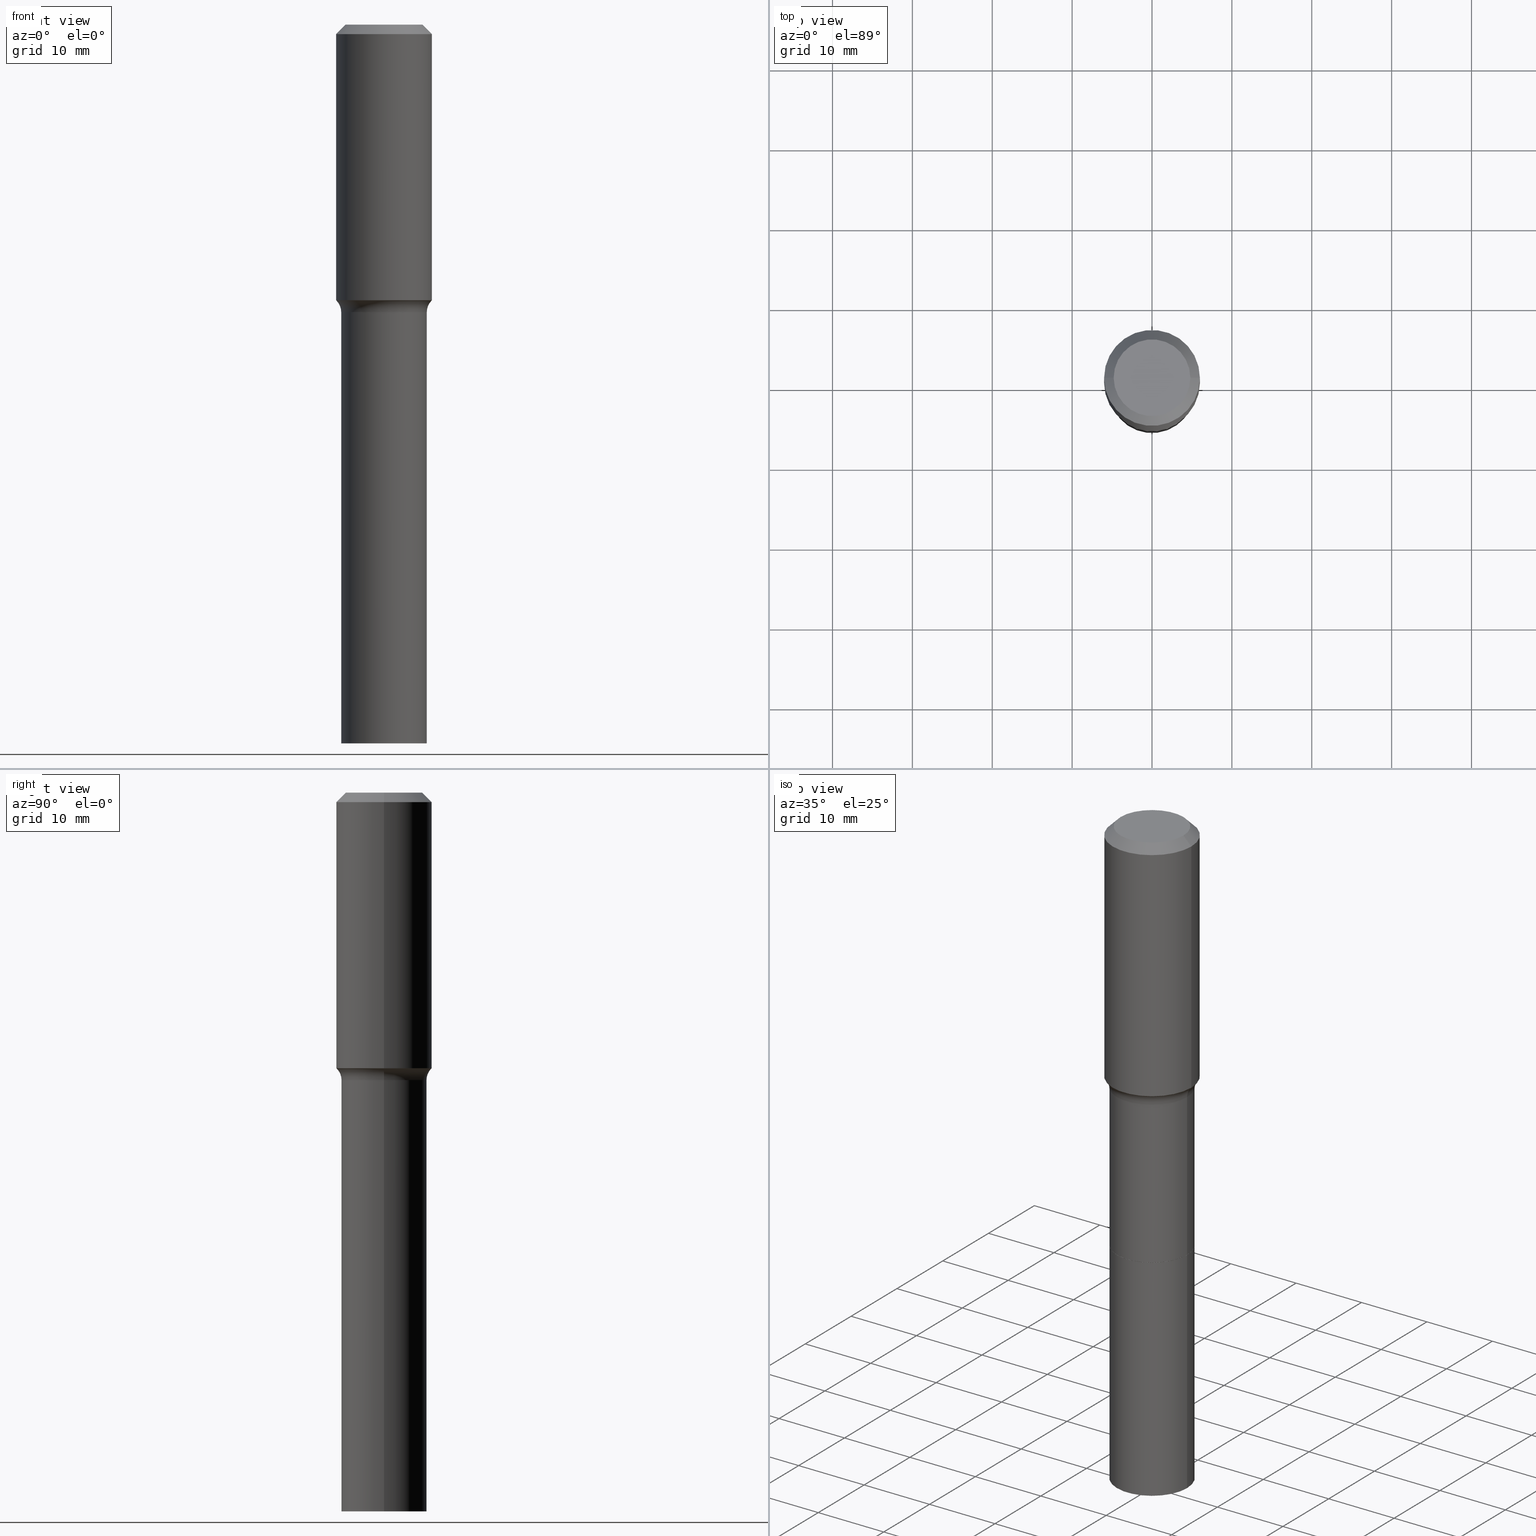
[diagram: canonical four-view strip — front | top / right | iso, engineering-drawing reading convention]
A machine part, canonical four-view strip (front | top / right | iso — engineering-drawing reading convention). The complete STEP part file that produces these views, byte-faithful:
ISO-10303-21;
HEADER;
FILE_DESCRIPTION (( 'STEP AP203' ),
    '1' );
FILE_NAME ('58840.STEP',
    '2025-04-01T15:25:37',
    ( '' ),
    ( '' ),
    'SwSTEP 2.0',
    'SolidWorks 2024',
    '' );
FILE_SCHEMA (( 'CONFIG_CONTROL_DESIGN' ));
ENDSEC;

DATA;
#1 = LOCAL_TIME ( 11, 25, 37.00000000000000000, #167 ) ;
#2 = DIRECTION ( 'NONE',  ( -2.445468806185136597E-29, 3.491481338843145583E-15, 1.000000000000000000 ) ) ;
#3 = ORIENTED_EDGE ( 'NONE', *, *, #275, .T. ) ;
#4 = CARTESIAN_POINT ( 'NONE',  ( 3.465962939006193759E-29, -4.948476501542390442E-15, -1.417300000000000004 ) ) ;
#5 = ORIENTED_EDGE ( 'NONE', *, *, #180, .F. ) ;
#6 = EDGE_CURVE ( 'NONE', #503, #441, #263, .T. ) ;
#7 = CIRCLE ( 'NONE', #165, 0.08000000000000009881 ) ;
#8 = ORIENTED_EDGE ( 'NONE', *, *, #191, .F. ) ;
#9 = DIRECTION ( 'NONE',  ( 1.000000000000000000, -6.982962677686261977E-15, 0.000000000000000000 ) ) ;
#10 = APPROVAL_STATUS ( 'not_yet_approved' ) ;
#11 = EDGE_LOOP ( 'NONE', ( #444, #131, #289, #376 ) ) ;
#12 = CIRCLE ( 'NONE', #435, 0.2109500000000002207 ) ;
#13 = CYLINDRICAL_SURFACE ( 'NONE', #272, 0.2109499999999999709 ) ;
#14 = CIRCLE ( 'NONE', #315, 0.2109499999999999154 ) ;
#15 = VERTEX_POINT ( 'NONE', #225 ) ;
#16 = DIRECTION ( 'NONE',  ( -2.445468806185136597E-29, 3.491481338843145583E-15, 1.000000000000000000 ) ) ;
#17 = CARTESIAN_POINT ( 'NONE',  ( 3.322682559777889075E-29, -4.743910093239522183E-15, -1.358709852022681019 ) ) ;
#18 = APPROVAL ( #51, 'UNSPECIFIED' ) ;
#19 = DIRECTION ( 'NONE',  ( -6.982962677686266711E-15, -1.000000000000000000, 3.491481338843145583E-15 ) ) ;
#20 = DIRECTION ( 'NONE',  ( -1.000000000000000000, 6.982962677686265922E-15, -4.876176775795935793E-29 ) ) ;
#21 = FACE_OUTER_BOUND ( 'NONE', #148, .T. ) ;
#22 = ORIENTED_EDGE ( 'NONE', *, *, #287, .T. ) ;
#23 = EDGE_CURVE ( 'NONE', #499, #44, #106, .T. ) ;
#24 = DIRECTION ( 'NONE',  ( -2.445468806185136597E-29, 3.491481338843145583E-15, 1.000000000000000000 ) ) ;
#25 = CARTESIAN_POINT ( 'NONE',  ( -0.2109500000000002207, -8.658876758010429483E-15, -3.543299999999999894 ) ) ;
#26 = CARTESIAN_POINT ( 'NONE',  ( 0.2362000000000000766, -1.649375784469496722E-15, 1.151752954443000368E-29 ) ) ;
#27 = DIRECTION ( 'NONE',  ( 1.000000000000000000, -6.982962677686266711E-15, 4.876185090822587894E-29 ) ) ;
#28 = CC_DESIGN_PERSON_AND_ORGANIZATION_ASSIGNMENT ( #252, #169, ( #390 ) ) ;
#29 = CARTESIAN_POINT ( 'NONE',  ( 1.155239464041865682E-30, -1.649375784469512105E-16, -0.04724000000000028870 ) ) ;
#30 = CARTESIAN_POINT ( 'NONE',  ( 8.665029620955794069E-29, -1.237136582792291707E-14, -3.543299999999999894 ) ) ;
#31 = CARTESIAN_POINT ( 'NONE',  ( 0.2324417038704663652, -6.381113480625271103E-15, -1.362740131194999815 ) ) ;
#32 = DIRECTION ( 'NONE',  ( -2.445468806185136597E-29, 3.491481338843145583E-15, 1.000000000000000000 ) ) ;
#33 = AXIS2_PLACEMENT_3D ( 'NONE', #420, #53, #65 ) ;
#34 = EDGE_CURVE ( 'NONE', #42, #361, #12, .T. ) ;
#35 = CIRCLE ( 'NONE', #239, 0.08000000000000009881 ) ;
#36 = EDGE_CURVE ( 'NONE', #503, #490, #80, .T. ) ;
#37 = CARTESIAN_POINT ( 'NONE',  ( 5.564175174713041439E-29, -7.944167490269808896E-15, -2.275300000000000100 ) ) ;
#38 = AXIS2_PLACEMENT_3D ( 'NONE', #63, #24, #150 ) ;
#39 = ORGANIZATION ( 'UNSPECIFIED', 'UNSPECIFIED', '' ) ;
#40 = CARTESIAN_POINT ( 'NONE',  ( 3.465962939006193759E-29, -4.948476501542390442E-15, -1.417300000000000004 ) ) ;
#41 = EDGE_CURVE ( 'NONE', #84, #15, #382, .T. ) ;
#42 = VERTEX_POINT ( 'NONE', #62 ) ;
#43 = EDGE_CURVE ( 'NONE', #499, #84, #155, .T. ) ;
#44 = VERTEX_POINT ( 'NONE', #221 ) ;
#45 = SHAPE_DEFINITION_REPRESENTATION ( #470, #231 ) ;
#46 = ORIENTED_EDGE ( 'NONE', *, *, #445, .T. ) ;
#47 = EDGE_CURVE ( 'NONE', #494, #125, #111, .T. ) ;
#48 = AXIS2_PLACEMENT_3D ( 'NONE', #4, #78, #120 ) ;
#49 = CARTESIAN_POINT ( 'NONE',  ( -0.2362000000000001598, -3.065608151374164211E-15, -1.358709852022681019 ) ) ;
#50 = ORIENTED_EDGE ( 'NONE', *, *, #460, .T. ) ;
#51 = APPROVAL_STATUS ( 'not_yet_approved' ) ;
#52 = DIRECTION ( 'NONE',  ( -1.000000000000000000, 6.982962677686266711E-15, 0.000000000000000000 ) ) ;
#53 = DIRECTION ( 'NONE',  ( -2.445468806185136597E-29, 3.491481338843145583E-15, 1.000000000000000000 ) ) ;
#54 = CARTESIAN_POINT ( 'NONE',  ( 1.155239464041865682E-30, -1.649375784469512105E-16, -0.04724000000000028870 ) ) ;
#55 =( LENGTH_UNIT ( ) NAMED_UNIT ( * ) SI_UNIT ( $, .METRE. ) );
#56 = AXIS2_PLACEMENT_3D ( 'NONE', #171, #16, #370 ) ;
#57 = PERSON_AND_ORGANIZATION ( #513, #39 ) ;
#58 = DIRECTION ( 'NONE',  ( -1.000000000000000000, 6.982962677686265922E-15, -4.876176775795935793E-29 ) ) ;
#59 = DIRECTION ( 'NONE',  ( -2.445468806185136877E-29, 3.491481338843145188E-15, 1.000000000000000000 ) ) ;
#60 = DIRECTION ( 'NONE',  ( -2.445468806185136597E-29, 3.491481338843145583E-15, 1.000000000000000000 ) ) ;
#61 = MANIFOLD_SOLID_BREP ( 'Body-Move/Copy2[2]', #281 ) ;
#62 = CARTESIAN_POINT ( 'NONE',  ( 0.2109500000000002207, -1.384442180478083622E-14, -3.543299999999999894 ) ) ;
#63 = CARTESIAN_POINT ( 'NONE',  ( 5.564175174713040318E-29, -7.944167490269808896E-15, -2.275300000000000100 ) ) ;
#64 = FACE_OUTER_BOUND ( 'NONE', #324, .T. ) ;
#65 = DIRECTION ( 'NONE',  ( 1.000000000000000000, -6.982962677686261977E-15, 0.000000000000000000 ) ) ;
#66 = VECTOR ( 'NONE', #306, 39.37007874015748143 ) ;
#67 = CARTESIAN_POINT ( 'NONE',  ( 5.564175174713041439E-29, -7.944167490269808896E-15, -2.275300000000000100 ) ) ;
#68 = DIRECTION ( 'NONE',  ( -0.7071067811864267805, 7.493145998869918709E-15, 0.7071067811866682540 ) ) ;
#69 = CARTESIAN_POINT ( 'NONE',  ( 3.322682559777889075E-29, -4.743910093239522183E-15, -1.358709852022681019 ) ) ;
#70 = ORIENTED_EDGE ( 'NONE', *, *, #233, .F. ) ;
#71 = CIRCLE ( 'NONE', #293, 0.2361999999999999933 ) ;
#72 = FACE_OUTER_BOUND ( 'NONE', #301, .T. ) ;
#73 = FACE_OUTER_BOUND ( 'NONE', #292, .T. ) ;
#74 = AXIS2_PLACEMENT_3D ( 'NONE', #430, #60, #219 ) ;
#75 = CARTESIAN_POINT ( 'NONE',  ( 1.155239464041865682E-30, -1.649375784469512105E-16, -0.04724000000000028870 ) ) ;
#76 = EDGE_CURVE ( 'NONE', #361, #269, #193, .T. ) ;
#77 = LOCAL_TIME ( 11, 25, 37.00000000000000000, #291 ) ;
#78 = DIRECTION ( 'NONE',  ( -2.445468806185136597E-29, 3.491481338843145583E-15, 1.000000000000000000 ) ) ;
#79 = ORIENTED_EDGE ( 'NONE', *, *, #433, .T. ) ;
#80 = CIRCLE ( 'NONE', #33, 0.2109499999999999986 ) ;
#81 = EDGE_LOOP ( 'NONE', ( #368, #360 ) ) ;
#82 = AXIS2_PLACEMENT_3D ( 'NONE', #333, #181, #259 ) ;
#83 = CARTESIAN_POINT ( 'NONE',  ( 5.564175174713040318E-29, -7.944167490269808896E-15, -2.275300000000000100 ) ) ;
#84 = VERTEX_POINT ( 'NONE', #347 ) ;
#85 = ADVANCED_FACE ( 'NONE', ( #304 ), #377, .T. ) ;
#86 = DATE_AND_TIME ( #496, #77 ) ;
#87 = ORIENTED_EDGE ( 'NONE', *, *, #139, .F. ) ;
#88 = EDGE_LOOP ( 'NONE', ( #265, #461, #338, #5 ) ) ;
#89 = AXIS2_PLACEMENT_3D ( 'NONE', #229, #224, #335 ) ;
#90 = VERTEX_POINT ( 'NONE', #432 ) ;
#91 = FACE_OUTER_BOUND ( 'NONE', #217, .T. ) ;
#92 = DATE_TIME_ROLE ( 'creation_date' ) ;
#93 = DIRECTION ( 'NONE',  ( -2.445468806185136877E-29, 3.491481338843145188E-15, 1.000000000000000000 ) ) ;
#94 = APPROVAL ( #446, 'UNSPECIFIED' ) ;
#95 = FACE_OUTER_BOUND ( 'NONE', #258, .T. ) ;
#96 = APPROVAL_ROLE ( '' ) ;
#97 = CYLINDRICAL_SURFACE ( 'NONE', #261, 0.2362000000000000766 ) ;
#98 = ORIENTED_EDGE ( 'NONE', *, *, #23, .F. ) ;
#99 = DIRECTION ( 'NONE',  ( 1.000000000000000000, -6.982962677686263555E-15, 0.000000000000000000 ) ) ;
#100 = CARTESIAN_POINT ( 'NONE',  ( -0.2324417038704663652, -3.106384096031399202E-15, -1.362740131194999815 ) ) ;
#101 = APPROVAL_PERSON_ORGANIZATION ( #486, #18, #206 ) ;
#102 = AXIS2_PLACEMENT_3D ( 'NONE', #67, #227, #384 ) ;
#103 = ORIENTED_EDGE ( 'NONE', *, *, #449, .F. ) ;
#104 = DIRECTION ( 'NONE',  ( 1.000000000000000000, -6.982962677686266711E-15, 0.000000000000000000 ) ) ;
#105 = ADVANCED_FACE ( 'NONE', ( #73 ), #330, .T. ) ;
#106 = LINE ( 'NONE', #416, #66 ) ;
#107 = LINE ( 'NONE', #266, #132 ) ;
#108 = DIRECTION ( 'NONE',  ( -2.445468806185136597E-29, 3.491481338843145583E-15, 1.000000000000000000 ) ) ;
#109 = DIRECTION ( 'NONE',  ( -2.445468806185136597E-29, 3.491481338843145583E-15, 1.000000000000000000 ) ) ;
#110 = ORIENTED_EDGE ( 'NONE', *, *, #41, .T. ) ;
#111 = CIRCLE ( 'NONE', #426, 0.1889600000000000168 ) ;
#112 = DIRECTION ( 'NONE',  ( -2.445468806185136597E-29, 3.491481338843145583E-15, 1.000000000000000000 ) ) ;
#113 = CONICAL_SURFACE ( 'NONE', #323, 0.2361999999999999933, 0.7853981633974452814 ) ;
#114 = ADVANCED_FACE ( 'NONE', ( #232 ), #299, .T. ) ;
#115 = PLANE ( 'NONE',  #518 ) ;
#116 = AXIS2_PLACEMENT_3D ( 'NONE', #69, #386, #303 ) ;
#117 = DIRECTION ( 'NONE',  ( 2.438088387897960049E-29, -3.491481338843145188E-15, -1.000000000000000000 ) ) ;
#118 = EDGE_CURVE ( 'NONE', #490, #168, #514, .T. ) ;
#119 = ORIENTED_EDGE ( 'NONE', *, *, #172, .F. ) ;
#120 = DIRECTION ( 'NONE',  ( 1.000000000000000000, -6.982962677686265133E-15, 0.000000000000000000 ) ) ;
#121 = VECTOR ( 'NONE', #380, 39.37007874015748143 ) ;
#122 = ORIENTED_EDGE ( 'NONE', *, *, #516, .F. ) ;
#123 = APPLICATION_CONTEXT ( 'configuration controlled 3d designs of mechanical parts and assemblies' ) ;
#124 = APPROVAL_ROLE ( '' ) ;
#125 = VERTEX_POINT ( 'NONE', #341 ) ;
#126 = MECHANICAL_CONTEXT ( 'NONE', #123, 'mechanical' ) ;
#127 = CALENDAR_DATE ( 2025, 1, 4 ) ;
#128 = VERTEX_POINT ( 'NONE', #267 ) ;
#129 = CIRCLE ( 'NONE', #474, 0.2324417038704663652 ) ;
#130 = APPROVAL_DATE_TIME ( #414, #18 ) ;
#131 = ORIENTED_EDGE ( 'NONE', *, *, #23, .T. ) ;
#132 = VECTOR ( 'NONE', #424, 39.37007874015748143 ) ;
#133 = APPROVAL_PERSON_ORGANIZATION ( #57, #94, #124 ) ;
#134 = DATE_AND_TIME ( #410, #1 ) ;
#135 = ORIENTED_EDGE ( 'NONE', *, *, #257, .T. ) ;
#136 = CC_DESIGN_DATE_AND_TIME_ASSIGNMENT ( #489, #92, ( #390 ) ) ;
#137 = CARTESIAN_POINT ( 'NONE',  ( 5.562952440309948637E-29, -7.942421749600386603E-15, -2.274799999999999933 ) ) ;
#138 = ORIENTED_EDGE ( 'NONE', *, *, #510, .T. ) ;
#139 = EDGE_CURVE ( 'NONE', #128, #499, #311, .T. ) ;
#140 = DIRECTION ( 'NONE',  ( -2.445468806185136597E-29, 3.491481338843145583E-15, 1.000000000000000000 ) ) ;
#141 = EDGE_LOOP ( 'NONE', ( #70, #423 ) ) ;
#142 = VECTOR ( 'NONE', #350, 39.37007874015748854 ) ;
#143 = LINE ( 'NONE', #389, #321 ) ;
#144 =( CONVERSION_BASED_UNIT ( 'INCH', #342 ) LENGTH_UNIT ( ) NAMED_UNIT ( #394 ) );
#145 = EDGE_CURVE ( 'NONE', #494, #44, #463, .T. ) ;
#146 = CONICAL_SURFACE ( 'NONE', #56, 0.2104499999999999982, 0.7853981633972775267 ) ;
#147 = DIRECTION ( 'NONE',  ( 2.445468806185136597E-29, -3.491481338843145583E-15, -1.000000000000000000 ) ) ;
#148 = EDGE_LOOP ( 'NONE', ( #122, #177, #328, #398 ) ) ;
#149 = DIRECTION ( 'NONE',  ( -2.445468806185136597E-29, 3.491481338843145583E-15, 1.000000000000000000 ) ) ;
#150 = DIRECTION ( 'NONE',  ( 1.000000000000000000, -6.982962677686266711E-15, 0.000000000000000000 ) ) ;
#151 = CARTESIAN_POINT ( 'NONE',  ( -4.713871149261273121E-47, 6.730158695841826722E-33, 1.927594061857931128E-18 ) ) ;
#152 = DIRECTION ( 'NONE',  ( -2.445468806185136877E-29, 3.491481338843145188E-15, 1.000000000000000000 ) ) ;
#153 = CARTESIAN_POINT ( 'NONE',  ( 0.000000000000000000, 0.000000000000000000, 0.000000000000000000 ) ) ;
#154 = CYLINDRICAL_SURFACE ( 'NONE', #402, 0.2109499999999999709 ) ;
#155 = CIRCLE ( 'NONE', #491, 0.2362000000000001598 ) ;
#156 = FACE_OUTER_BOUND ( 'NONE', #286, .T. ) ;
#157 =( GEOMETRIC_REPRESENTATION_CONTEXT ( 3 ) GLOBAL_UNCERTAINTY_ASSIGNED_CONTEXT ( ( #235 ) ) GLOBAL_UNIT_ASSIGNED_CONTEXT ( ( #144, #305, #506 ) ) REPRESENTATION_CONTEXT ( 'NONE', 'WORKASPACE' ) );
#158 = CARTESIAN_POINT ( 'NONE',  ( -0.2109499999999999986, -8.658876758010431060E-15, -2.275300000000000100 ) ) ;
#159 = VECTOR ( 'NONE', #471, 39.37007874015748854 ) ;
#160 = CARTESIAN_POINT ( 'NONE',  ( 5.564175174713040318E-29, -7.944167490269808896E-15, -2.275300000000000100 ) ) ;
#161 = CIRCLE ( 'NONE', #116, 0.2362000000000001598 ) ;
#162 = VECTOR ( 'NONE', #197, 39.37007874015748143 ) ;
#163 = CALENDAR_DATE ( 2025, 1, 4 ) ;
#164 = VERTEX_POINT ( 'NONE', #501 ) ;
#165 = AXIS2_PLACEMENT_3D ( 'NONE', #222, #19, #99 ) ;
#166 = EDGE_CURVE ( 'NONE', #269, #453, #202, .T. ) ;
#167 = COORDINATED_UNIVERSAL_TIME_OFFSET ( 5, 0, .BEHIND. ) ;
#168 = VERTEX_POINT ( 'NONE', #260 ) ;
#169 = PERSON_AND_ORGANIZATION_ROLE ( 'creator' ) ;
#170 = ORIENTED_EDGE ( 'NONE', *, *, #449, .T. ) ;
#171 = CARTESIAN_POINT ( 'NONE',  ( 5.564175174713041439E-29, -7.944167490269808896E-15, -2.275300000000000100 ) ) ;
#172 = EDGE_CURVE ( 'NONE', #183, #503, #194, .T. ) ;
#173 = VECTOR ( 'NONE', #59, 39.37007874015748143 ) ;
#174 = APPROVAL_DATE_TIME ( #400, #408 ) ;
#175 = ORIENTED_EDGE ( 'NONE', *, *, #278, .F. ) ;
#176 = FACE_OUTER_BOUND ( 'NONE', #141, .T. ) ;
#177 = ORIENTED_EDGE ( 'NONE', *, *, #47, .F. ) ;
#178 = CARTESIAN_POINT ( 'NONE',  ( -0.1889600000000000168, 1.401969416799070942E-15, 3.855188123706346622E-18 ) ) ;
#179 = DIRECTION ( 'NONE',  ( -2.445468806185136597E-29, 3.491481338843145583E-15, 1.000000000000000000 ) ) ;
#180 = EDGE_CURVE ( 'NONE', #164, #490, #143, .T. ) ;
#181 = DIRECTION ( 'NONE',  ( -2.438088387897960049E-29, 3.491481338843145188E-15, 1.000000000000000000 ) ) ;
#182 = CARTESIAN_POINT ( 'NONE',  ( -0.2361999999999999933, 1.484438206022545019E-15, -0.04724000000000028870 ) ) ;
#183 = VERTEX_POINT ( 'NONE', #421 ) ;
#184 = DIRECTION ( 'NONE',  ( 0.000000000000000000, 0.000000000000000000, 1.000000000000000000 ) ) ;
#185 = CARTESIAN_POINT ( 'NONE',  ( 0.2109500000000001096, -9.417223467127726461E-15, -2.275300000000000100 ) ) ;
#186 = AXIS2_PLACEMENT_3D ( 'NONE', #498, #149, #307 ) ;
#187 = CC_DESIGN_APPROVAL ( #94, ( #205 ) ) ;
#188 = DIRECTION ( 'NONE',  ( 1.000000000000000000, -6.982962677686268288E-15, 0.000000000000000000 ) ) ;
#189 = PRODUCT ( '58840', '58840', '', ( #126 ) ) ;
#190 = CARTESIAN_POINT ( 'NONE',  ( 0.2109499999999999709, -1.473055976857917762E-15, 1.028629490854152488E-29 ) ) ;
#191 = EDGE_CURVE ( 'NONE', #453, #269, #196, .T. ) ;
#192 = DIRECTION ( 'NONE',  ( 1.000000000000000000, -6.982962677686262766E-15, 0.000000000000000000 ) ) ;
#193 = LINE ( 'NONE', #512, #440 ) ;
#194 = LINE ( 'NONE', #264, #413 ) ;
#195 = CC_DESIGN_PERSON_AND_ORGANIZATION_ASSIGNMENT ( #288, #212, ( #215 ) ) ;
#196 = CIRCLE ( 'NONE', #38, 0.2109499999999999986 ) ;
#197 = DIRECTION ( 'NONE',  ( -2.445468806185136877E-29, 3.491481338843145188E-15, 1.000000000000000000 ) ) ;
#198 = CIRCLE ( 'NONE', #48, 0.2109499999999999154 ) ;
#199 = EDGE_CURVE ( 'NONE', #125, #494, #472, .T. ) ;
#200 = ORIENTED_EDGE ( 'NONE', *, *, #199, .T. ) ;
#201 = ORIENTED_EDGE ( 'NONE', *, *, #6, .F. ) ;
#202 = CIRCLE ( 'NONE', #451, 0.2109499999999999986 ) ;
#203 = EDGE_LOOP ( 'NONE', ( #98, #378, #110, #175 ) ) ;
#204 = AXIS2_PLACEMENT_3D ( 'NONE', #75, #517, #277 ) ;
#205 = SECURITY_CLASSIFICATION ( '', '', #216 ) ;
#206 = APPROVAL_ROLE ( '' ) ;
#207 = ORIENTED_EDGE ( 'NONE', *, *, #118, .T. ) ;
#208 = EDGE_CURVE ( 'NONE', #42, #453, #271, .T. ) ;
#209 = CARTESIAN_POINT ( 'NONE',  ( 1.155239464041865682E-30, -1.649375784469512105E-16, -0.04724000000000028870 ) ) ;
#210 = ORIENTED_EDGE ( 'NONE', *, *, #433, .F. ) ;
#211 = VECTOR ( 'NONE', #93, 39.37007874015748143 ) ;
#212 = PERSON_AND_ORGANIZATION_ROLE ( 'creator' ) ;
#213 = DIRECTION ( 'NONE',  ( -2.445468806185136597E-29, 3.491481338843145583E-15, 1.000000000000000000 ) ) ;
#214 = DIRECTION ( 'NONE',  ( -2.445468806185136597E-29, 3.491481338843145583E-15, 1.000000000000000000 ) ) ;
#215 = PRODUCT_DEFINITION_FORMATION_WITH_SPECIFIED_SOURCE ( 'ANY', '', #189, .NOT_KNOWN. ) ;
#216 = SECURITY_CLASSIFICATION_LEVEL ( 'unclassified' ) ;
#217 = EDGE_LOOP ( 'NONE', ( #244, #399, #359, #401 ) ) ;
#218 = CARTESIAN_POINT ( 'NONE',  ( -0.2909499999999999309, -2.881152411848379048E-15, -1.417300000000000004 ) ) ;
#219 = DIRECTION ( 'NONE',  ( 1.000000000000000000, -6.982962677686265922E-15, 0.000000000000000000 ) ) ;
#220 = FACE_OUTER_BOUND ( 'NONE', #203, .T. ) ;
#221 = CARTESIAN_POINT ( 'NONE',  ( -0.2361999999999999933, -7.761218939778795629E-16, -0.04724000000000028870 ) ) ;
#222 = CARTESIAN_POINT ( 'NONE',  ( 0.2909499999999999309, -6.980169492615208871E-15, -1.417300000000000004 ) ) ;
#223 = CARTESIAN_POINT ( 'NONE',  ( 8.665029620955794069E-29, -1.237136582792291707E-14, -3.543299999999999894 ) ) ;
#224 = DIRECTION ( 'NONE',  ( -2.445468806185136597E-29, 3.491481338843145583E-15, 1.000000000000000000 ) ) ;
#225 = CARTESIAN_POINT ( 'NONE',  ( 0.2361999999999999933, -1.814313362916447440E-15, -0.04724000000000028870 ) ) ;
#226 = ADVANCED_FACE ( 'NONE', ( #72 ), #356, .T. ) ;
#227 = DIRECTION ( 'NONE',  ( -2.445468806185136597E-29, 3.491481338843145583E-15, 1.000000000000000000 ) ) ;
#228 = DIRECTION ( 'NONE',  ( 0.7071067811864267805, -2.468850131080992517E-15, 0.7071067811866682540 ) ) ;
#229 = CARTESIAN_POINT ( 'NONE',  ( 3.332538481774012306E-29, -4.757981737760001593E-15, -1.362740131194999815 ) ) ;
#230 = ORIENTED_EDGE ( 'NONE', *, *, #36, .T. ) ;
#231 = ADVANCED_BREP_SHAPE_REPRESENTATION ( '58840', ( #246, #61, #393 ), #157 ) ;
#232 = FACE_OUTER_BOUND ( 'NONE', #404, .T. ) ;
#233 = EDGE_CURVE ( 'NONE', #164, #183, #300, .T. ) ;
#234 = CARTESIAN_POINT ( 'NONE',  ( 3.332538481774012306E-29, -4.757981737760001593E-15, -1.362740131194999815 ) ) ;
#235 = UNCERTAINTY_MEASURE_WITH_UNIT (LENGTH_MEASURE( 1.000000000000000082E-05 ), #144, 'distance_accuracy_value', 'NONE');
#236 = CARTESIAN_POINT ( 'NONE',  ( 3.332538481774012306E-29, -4.757981737760001593E-15, -1.362740131194999815 ) ) ;
#237 = AXIS2_PLACEMENT_3D ( 'NONE', #236, #314, #467 ) ;
#238 = DIRECTION ( 'NONE',  ( 1.000000000000000000, -6.982962677686264344E-15, 0.000000000000000000 ) ) ;
#239 = AXIS2_PLACEMENT_3D ( 'NONE', #218, #379, #455 ) ;
#240 = CC_DESIGN_PERSON_AND_ORGANIZATION_ASSIGNMENT ( #476, #375, ( #189 ) ) ;
#241 = DESIGN_CONTEXT ( 'detailed design', #245, 'design' ) ;
#242 = FACE_OUTER_BOUND ( 'NONE', #283, .T. ) ;
#243 = AXIS2_PLACEMENT_3D ( 'NONE', #372, #415, #381 ) ;
#244 = ORIENTED_EDGE ( 'NONE', *, *, #488, .T. ) ;
#245 = APPLICATION_CONTEXT ( 'configuration controlled 3d designs of mechanical parts and assemblies' ) ;
#246 = MANIFOLD_SOLID_BREP ( 'Body-Move/Copy2[1]', #313 ) ;
#247 = ORIENTED_EDGE ( 'NONE', *, *, #275, .F. ) ;
#248 = EDGE_LOOP ( 'NONE', ( #469, #247, #79, #22 ) ) ;
#249 = ORIENTED_EDGE ( 'NONE', *, *, #460, .F. ) ;
#250 = AXIS2_PLACEMENT_3D ( 'NONE', #29, #147, #52 ) ;
#251 = DIRECTION ( 'NONE',  ( 1.000000000000000000, -6.982962677686266711E-15, 0.000000000000000000 ) ) ;
#252 = PERSON_AND_ORGANIZATION ( #513, #39 ) ;
#253 = FACE_OUTER_BOUND ( 'NONE', #88, .T. ) ;
#254 = CALENDAR_DATE ( 2025, 1, 4 ) ;
#255 = PLANE ( 'NONE',  #302 ) ;
#256 = CARTESIAN_POINT ( 'NONE',  ( -0.2109499999999999709, 1.498889901085931135E-15, -1.037649357289272242E-29 ) ) ;
#257 = EDGE_CURVE ( 'NONE', #90, #84, #308, .T. ) ;
#258 = EDGE_LOOP ( 'NONE', ( #336, #487, #349, #456 ) ) ;
#259 = DIRECTION ( 'NONE',  ( 1.000000000000000000, -6.982962677686265922E-15, 4.876176775795935793E-29 ) ) ;
#260 = CARTESIAN_POINT ( 'NONE',  ( 0.2109499999999999154, -6.421532478400307219E-15, -1.417300000000000004 ) ) ;
#261 = AXIS2_PLACEMENT_3D ( 'NONE', #422, #464, #511 ) ;
#262 = ADVANCED_FACE ( 'NONE', ( #156 ), #418, .T. ) ;
#263 = LINE ( 'NONE', #256, #211 ) ;
#264 = CARTESIAN_POINT ( 'NONE',  ( -0.2104499999999999982, -6.448830302862677870E-15, -2.275300000000000100 ) ) ;
#265 = ORIENTED_EDGE ( 'NONE', *, *, #233, .T. ) ;
#266 = CARTESIAN_POINT ( 'NONE',  ( 0.2361999999999999933, -1.785387205520586782E-15, -0.04724000000000028870 ) ) ;
#267 = CARTESIAN_POINT ( 'NONE',  ( -0.2324417038704663652, -3.106384096031399596E-15, -1.362740131194999815 ) ) ;
#268 = CARTESIAN_POINT ( 'NONE',  ( 0.000000000000000000, 0.000000000000000000, 0.000000000000000000 ) ) ;
#269 = VERTEX_POINT ( 'NONE', #158 ) ;
#270 = ADVANCED_FACE ( 'NONE', ( #316 ), #115, .F. ) ;
#271 = LINE ( 'NONE', #185, #162 ) ;
#272 = AXIS2_PLACEMENT_3D ( 'NONE', #409, #214, #466 ) ;
#273 = DIRECTION ( 'NONE',  ( -0.7071067811865453523, 2.468850131082234184E-15, -0.7071067811865496822 ) ) ;
#274 = CARTESIAN_POINT ( 'NONE',  ( 5.564175174713040318E-29, -7.944167490269808896E-15, -2.275300000000000100 ) ) ;
#275 = EDGE_CURVE ( 'NONE', #90, #128, #129, .T. ) ;
#276 = FACE_OUTER_BOUND ( 'NONE', #387, .T. ) ;
#277 = DIRECTION ( 'NONE',  ( 1.000000000000000000, -6.982962677686266711E-15, 0.000000000000000000 ) ) ;
#278 = EDGE_CURVE ( 'NONE', #44, #15, #282, .T. ) ;
#279 = DIRECTION ( 'NONE',  ( -2.445468806185136597E-29, 3.491481338843145583E-15, 1.000000000000000000 ) ) ;
#280 = ADVANCED_FACE ( 'NONE', ( #276 ), #478, .T. ) ;
#281 = CLOSED_SHELL ( 'NONE', ( #429, #482, #85, #226, #284, #473, #352, #357, #105, #325, #339, #371, #477, #280 ) ) ;
#282 = CIRCLE ( 'NONE', #204, 0.2361999999999999933 ) ;
#283 = EDGE_LOOP ( 'NONE', ( #407, #50, #343, #447 ) ) ;
#284 = ADVANCED_FACE ( 'NONE', ( #442 ), #364, .F. ) ;
#285 = PERSON_AND_ORGANIZATION ( #513, #39 ) ;
#286 = EDGE_LOOP ( 'NONE', ( #327, #294, #8, #411 ) ) ;
#287 = EDGE_CURVE ( 'NONE', #168, #441, #198, .T. ) ;
#288 = PERSON_AND_ORGANIZATION ( #513, #39 ) ;
#289 = ORIENTED_EDGE ( 'NONE', *, *, #479, .F. ) ;
#290 = AXIS2_PLACEMENT_3D ( 'NONE', #274, #434, #475 ) ;
#291 = COORDINATED_UNIVERSAL_TIME_OFFSET ( 5, 0, .BEHIND. ) ;
#292 = EDGE_LOOP ( 'NONE', ( #87, #397, #135, #366 ) ) ;
#293 = AXIS2_PLACEMENT_3D ( 'NONE', #209, #340, #251 ) ;
#294 = ORIENTED_EDGE ( 'NONE', *, *, #76, .T. ) ;
#295 = CARTESIAN_POINT ( 'NONE',  ( 0.2109499999999999986, -9.415477726458304168E-15, -2.274799999999999933 ) ) ;
#296 = PERSON_AND_ORGANIZATION_ROLE ( 'classification_officer' ) ;
#297 = ORIENTED_EDGE ( 'NONE', *, *, #419, .F. ) ;
#298 = CC_DESIGN_PERSON_AND_ORGANIZATION_ASSIGNMENT ( #334, #296, ( #205 ) ) ;
#299 = PLANE ( 'NONE',  #351 ) ;
#300 = CIRCLE ( 'NONE', #363, 0.2104499999999999982 ) ;
#301 = EDGE_LOOP ( 'NONE', ( #3, #369, #297, #458 ) ) ;
#302 = AXIS2_PLACEMENT_3D ( 'NONE', #151, #468, #58 ) ;
#303 = DIRECTION ( 'NONE',  ( 1.000000000000000000, -6.982962677686268288E-15, 0.000000000000000000 ) ) ;
#304 = FACE_OUTER_BOUND ( 'NONE', #11, .T. ) ;
#305 =( NAMED_UNIT ( * ) PLANE_ANGLE_UNIT ( ) SI_UNIT ( $, .RADIAN. ) );
#306 = DIRECTION ( 'NONE',  ( -2.445468806185136877E-29, 3.491481338843145188E-15, 1.000000000000000000 ) ) ;
#307 = DIRECTION ( 'NONE',  ( 1.000000000000000000, -6.982962677686269077E-15, 0.000000000000000000 ) ) ;
#308 = LINE ( 'NONE', #31, #142 ) ;
#309 = ADVANCED_FACE ( 'NONE', ( #242 ), #395, .T. ) ;
#310 = DIRECTION ( 'NONE',  ( 1.000000000000000000, -6.982962677686269077E-15, 0.000000000000000000 ) ) ;
#311 = LINE ( 'NONE', #100, #159 ) ;
#312 = FACE_OUTER_BOUND ( 'NONE', #497, .T. ) ;
#313 = CLOSED_SHELL ( 'NONE', ( #262, #114, #309, #270 ) ) ;
#314 = DIRECTION ( 'NONE',  ( -2.445468806185136597E-29, 3.491481338843145583E-15, 1.000000000000000000 ) ) ;
#315 = AXIS2_PLACEMENT_3D ( 'NONE', #457, #140, #329 ) ;
#316 = FACE_OUTER_BOUND ( 'NONE', #81, .T. ) ;
#317 = DIRECTION ( 'NONE',  ( -2.445468806185136597E-29, 3.491481338843145583E-15, 1.000000000000000000 ) ) ;
#318 = CIRCLE ( 'NONE', #102, 0.2104499999999999982 ) ;
#319 = CC_DESIGN_DATE_AND_TIME_ASSIGNMENT ( #134, #448, ( #205 ) ) ;
#320 = ORIENTED_EDGE ( 'NONE', *, *, #180, .T. ) ;
#321 = VECTOR ( 'NONE', #228, 39.37007874015748143 ) ;
#322 = COORDINATED_UNIVERSAL_TIME_OFFSET ( 5, 0, .BEHIND. ) ;
#323 = AXIS2_PLACEMENT_3D ( 'NONE', #54, #405, #495 ) ;
#324 = EDGE_LOOP ( 'NONE', ( #201, #230, #207, #103 ) ) ;
#325 = ADVANCED_FACE ( 'NONE', ( #220 ), #97, .T. ) ;
#326 = COORDINATED_UNIVERSAL_TIME_OFFSET ( 5, 0, .BEHIND. ) ;
#327 = ORIENTED_EDGE ( 'NONE', *, *, #34, .T. ) ;
#328 = ORIENTED_EDGE ( 'NONE', *, *, #145, .T. ) ;
#329 = DIRECTION ( 'NONE',  ( 1.000000000000000000, -6.982962677686265133E-15, 0.000000000000000000 ) ) ;
#330 = CONICAL_SURFACE ( 'NONE', #237, 0.2324417038704663652, 0.7504915783575757393 ) ;
#331 = APPROVAL_DATE_TIME ( #86, #94 ) ;
#332 = TOROIDAL_SURFACE ( 'NONE', #243, 0.2909499999999999309, 0.08000000000000009881 ) ;
#333 = CARTESIAN_POINT ( 'NONE',  ( 3.501713020317568181E-29, -1.089773068341986778E-14, -2.275300000000000100 ) ) ;
#334 = PERSON_AND_ORGANIZATION ( #513, #39 ) ;
#335 = DIRECTION ( 'NONE',  ( 1.000000000000000000, -6.982962677686265922E-15, 0.000000000000000000 ) ) ;
#336 = ORIENTED_EDGE ( 'NONE', *, *, #199, .F. ) ;
#337 = DIRECTION ( 'NONE',  ( -2.445468806185136597E-29, 3.491481338843145583E-15, 1.000000000000000000 ) ) ;
#338 = ORIENTED_EDGE ( 'NONE', *, *, #488, .F. ) ;
#339 = ADVANCED_FACE ( 'NONE', ( #21 ), #504, .T. ) ;
#340 = DIRECTION ( 'NONE',  ( -2.445468806185136597E-29, 3.491481338843145583E-15, 1.000000000000000000 ) ) ;
#341 = CARTESIAN_POINT ( 'NONE',  ( 0.1889600000000000168, -1.540873453589747738E-15, 3.855188123725863225E-18 ) ) ;
#342 = LENGTH_MEASURE_WITH_UNIT ( LENGTH_MEASURE( 0.02539999999999999897 ), #55 );
#343 = ORIENTED_EDGE ( 'NONE', *, *, #208, .T. ) ;
#344 = CIRCLE ( 'NONE', #89, 0.2324417038704663652 ) ;
#345 = DIRECTION ( 'NONE',  ( -2.445468806185136597E-29, 3.491481338843145583E-15, 1.000000000000000000 ) ) ;
#346 = CARTESIAN_POINT ( 'NONE',  ( -9.427742298522546243E-47, 1.346031739168365344E-32, 3.855188123715862256E-18 ) ) ;
#347 = CARTESIAN_POINT ( 'NONE',  ( 0.2362000000000001598, -6.393285877709018708E-15, -1.358709852022681019 ) ) ;
#348 = DIRECTION ( 'NONE',  ( -1.000000000000000000, 6.982962677686265922E-15, -4.876176775795935793E-29 ) ) ;
#349 = ORIENTED_EDGE ( 'NONE', *, *, #479, .T. ) ;
#350 = DIRECTION ( 'NONE',  ( 0.6819983600625086906, -2.208861293262580327E-15, 0.7313537016191609119 ) ) ;
#351 = AXIS2_PLACEMENT_3D ( 'NONE', #223, #459, #20 ) ;
#352 = ADVANCED_FACE ( 'NONE', ( #64 ), #154, .T. ) ;
#353 = DIRECTION ( 'NONE',  ( 1.000000000000000000, -6.982962677686264344E-15, 0.000000000000000000 ) ) ;
#354 = LOCAL_TIME ( 11, 25, 37.00000000000000000, #322 ) ;
#355 = DIRECTION ( 'NONE',  ( -2.445468806185136597E-29, 3.491481338843145583E-15, 1.000000000000000000 ) ) ;
#356 = CONICAL_SURFACE ( 'NONE', #74, 0.2324417038704663652, 0.7504915783575757393 ) ;
#357 = ADVANCED_FACE ( 'NONE', ( #507 ), #332, .F. ) ;
#358 = AXIS2_PLACEMENT_3D ( 'NONE', #137, #337, #9 ) ;
#359 = ORIENTED_EDGE ( 'NONE', *, *, #287, .F. ) ;
#360 = ORIENTED_EDGE ( 'NONE', *, *, #166, .T. ) ;
#361 = VERTEX_POINT ( 'NONE', #25 ) ;
#362 = EDGE_CURVE ( 'NONE', #128, #90, #344, .T. ) ;
#363 = AXIS2_PLACEMENT_3D ( 'NONE', #388, #345, #353 ) ;
#364 = TOROIDAL_SURFACE ( 'NONE', #436, 0.2909499999999999309, 0.08000000000000009881 ) ;
#365 = CC_DESIGN_SECURITY_CLASSIFICATION ( #205, ( #215 ) ) ;
#366 = ORIENTED_EDGE ( 'NONE', *, *, #43, .F. ) ;
#367 = PERSON_AND_ORGANIZATION_ROLE ( 'design_supplier' ) ;
#368 = ORIENTED_EDGE ( 'NONE', *, *, #191, .T. ) ;
#369 = ORIENTED_EDGE ( 'NONE', *, *, #139, .T. ) ;
#370 = DIRECTION ( 'NONE',  ( 1.000000000000000000, -6.982962677686264344E-15, 0.000000000000000000 ) ) ;
#371 = ADVANCED_FACE ( 'NONE', ( #312 ), #255, .F. ) ;
#372 = CARTESIAN_POINT ( 'NONE',  ( 3.465962939006193759E-29, -4.948476501542390442E-15, -1.417300000000000004 ) ) ;
#373 = EDGE_LOOP ( 'NONE', ( #428, #46, #170, #210 ) ) ;
#374 = CIRCLE ( 'NONE', #358, 0.2109499999999999986 ) ;
#375 = PERSON_AND_ORGANIZATION_ROLE ( 'design_owner' ) ;
#376 = ORIENTED_EDGE ( 'NONE', *, *, #41, .F. ) ;
#377 = CYLINDRICAL_SURFACE ( 'NONE', #480, 0.2362000000000000766 ) ;
#378 = ORIENTED_EDGE ( 'NONE', *, *, #43, .T. ) ;
#379 = DIRECTION ( 'NONE',  ( 7.105427357601001859E-15, 1.000000000000000000, -3.491481338843145583E-15 ) ) ;
#380 = DIRECTION ( 'NONE',  ( -2.445468806185136877E-29, 3.491481338843145188E-15, 1.000000000000000000 ) ) ;
#381 = DIRECTION ( 'NONE',  ( 1.000000000000000000, -6.982962677686268288E-15, 4.883557194083112901E-29 ) ) ;
#382 = LINE ( 'NONE', #26, #173 ) ;
#383 = DIRECTION ( 'NONE',  ( 1.000000000000000000, 0.000000000000000000, 0.000000000000000000 ) ) ;
#384 = DIRECTION ( 'NONE',  ( 1.000000000000000000, -6.982962677686264344E-15, 0.000000000000000000 ) ) ;
#385 = CARTESIAN_POINT ( 'NONE',  ( -9.427742298522546243E-47, 1.346031739168365344E-32, 3.855188123715862256E-18 ) ) ;
#386 = DIRECTION ( 'NONE',  ( -2.445468806185136597E-29, 3.491481338843145583E-15, 1.000000000000000000 ) ) ;
#387 = EDGE_LOOP ( 'NONE', ( #119, #138, #320, #485 ) ) ;
#388 = CARTESIAN_POINT ( 'NONE',  ( 5.564175174713041439E-29, -7.944167490269808896E-15, -2.275300000000000100 ) ) ;
#389 = CARTESIAN_POINT ( 'NONE',  ( 0.2104499999999999982, -9.413731985788883453E-15, -2.275300000000000100 ) ) ;
#390 = PRODUCT_DEFINITION ( 'UNKNOWN', '', #215, #241 ) ;
#391 = AXIS2_PLACEMENT_3D ( 'NONE', #385, #32, #27 ) ;
#392 = AXIS2_PLACEMENT_3D ( 'NONE', #37, #317, #238 ) ;
#393 = AXIS2_PLACEMENT_3D ( 'NONE', #431, #184, #383 ) ;
#394 = DIMENSIONAL_EXPONENTS ( 1.000000000000000000, 0.000000000000000000, 0.000000000000000000, 0.000000000000000000, 0.000000000000000000, 0.000000000000000000, 0.000000000000000000 ) ;
#395 = CYLINDRICAL_SURFACE ( 'NONE', #483, 0.2109500000000001096 ) ;
#396 = DIRECTION ( 'NONE',  ( 1.000000000000000000, -6.982962677686265922E-15, 0.000000000000000000 ) ) ;
#397 = ORIENTED_EDGE ( 'NONE', *, *, #362, .T. ) ;
#398 = ORIENTED_EDGE ( 'NONE', *, *, #278, .T. ) ;
#399 = ORIENTED_EDGE ( 'NONE', *, *, #6, .T. ) ;
#400 = DATE_AND_TIME ( #254, #354 ) ;
#401 = ORIENTED_EDGE ( 'NONE', *, *, #118, .F. ) ;
#402 = AXIS2_PLACEMENT_3D ( 'NONE', #268, #109, #427 ) ;
#403 = PERSON_AND_ORGANIZATION ( #513, #39 ) ;
#404 = EDGE_LOOP ( 'NONE', ( #481, #249 ) ) ;
#405 = DIRECTION ( 'NONE',  ( 2.445468806185136597E-29, -3.491481338843145583E-15, -1.000000000000000000 ) ) ;
#406 = APPLICATION_PROTOCOL_DEFINITION ( 'international standard', 'config_control_design', 1994, #245 ) ;
#407 = ORIENTED_EDGE ( 'NONE', *, *, #76, .F. ) ;
#408 = APPROVAL ( #10, 'UNSPECIFIED' ) ;
#409 = CARTESIAN_POINT ( 'NONE',  ( 0.000000000000000000, 0.000000000000000000, 0.000000000000000000 ) ) ;
#410 = CALENDAR_DATE ( 2025, 1, 4 ) ;
#411 = ORIENTED_EDGE ( 'NONE', *, *, #208, .F. ) ;
#412 = CARTESIAN_POINT ( 'NONE',  ( 0.2109499999999999986, -9.417223467127726461E-15, -2.275300000000000100 ) ) ;
#413 = VECTOR ( 'NONE', #68, 39.37007874015748143 ) ;
#414 = DATE_AND_TIME ( #127, #443 ) ;
#415 = DIRECTION ( 'NONE',  ( -2.445468806185136597E-29, 3.491481338843145583E-15, 1.000000000000000000 ) ) ;
#416 = CARTESIAN_POINT ( 'NONE',  ( -0.2362000000000000766, 1.678301941865357183E-15, -1.161852468318209177E-29 ) ) ;
#417 = CC_DESIGN_APPROVAL ( #408, ( #215 ) ) ;
#418 = CYLINDRICAL_SURFACE ( 'NONE', #290, 0.2109500000000001096 ) ;
#419 = EDGE_CURVE ( 'NONE', #84, #499, #161, .T. ) ;
#420 = CARTESIAN_POINT ( 'NONE',  ( 5.562952440309948637E-29, -7.942421749600386603E-15, -2.274799999999999933 ) ) ;
#421 = CARTESIAN_POINT ( 'NONE',  ( -0.2104499999999999982, -6.446181075688567458E-15, -2.275300000000000100 ) ) ;
#422 = CARTESIAN_POINT ( 'NONE',  ( 0.000000000000000000, 0.000000000000000000, 0.000000000000000000 ) ) ;
#423 = ORIENTED_EDGE ( 'NONE', *, *, #510, .F. ) ;
#424 = DIRECTION ( 'NONE',  ( 0.7071067811865453523, -7.319954787623248157E-15, -0.7071067811865496822 ) ) ;
#425 = CARTESIAN_POINT ( 'NONE',  ( 5.564175174713040318E-29, -7.944167490269808896E-15, -2.275300000000000100 ) ) ;
#426 = AXIS2_PLACEMENT_3D ( 'NONE', #346, #213, #508 ) ;
#427 = DIRECTION ( 'NONE',  ( 1.000000000000000000, -6.982962677686266711E-15, 4.876176775795935793E-29 ) ) ;
#428 = ORIENTED_EDGE ( 'NONE', *, *, #362, .F. ) ;
#429 = ADVANCED_FACE ( 'NONE', ( #253 ), #146, .T. ) ;
#430 = CARTESIAN_POINT ( 'NONE',  ( 3.332538481774012306E-29, -4.757981737760001593E-15, -1.362740131194999815 ) ) ;
#431 = CARTESIAN_POINT ( 'NONE',  ( 0.000000000000000000, 0.000000000000000000, 0.000000000000000000 ) ) ;
#432 = CARTESIAN_POINT ( 'NONE',  ( 0.2324417038704663652, -6.381113480625271103E-15, -1.362740131194999815 ) ) ;
#433 = EDGE_CURVE ( 'NONE', #90, #168, #7, .T. ) ;
#434 = DIRECTION ( 'NONE',  ( -2.445468806185136597E-29, 3.491481338843145583E-15, 1.000000000000000000 ) ) ;
#435 = AXIS2_PLACEMENT_3D ( 'NONE', #30, #465, #310 ) ;
#436 = AXIS2_PLACEMENT_3D ( 'NONE', #40, #355, #437 ) ;
#437 = DIRECTION ( 'NONE',  ( 1.000000000000000000, -6.982962677686268288E-15, 4.883557194083112901E-29 ) ) ;
#438 = PRODUCT_RELATED_PRODUCT_CATEGORY ( 'detail', '', ( #189 ) ) ;
#439 = APPLICATION_PROTOCOL_DEFINITION ( 'international standard', 'config_control_design', 1994, #123 ) ;
#440 = VECTOR ( 'NONE', #152, 39.37007874015748143 ) ;
#441 = VERTEX_POINT ( 'NONE', #505 ) ;
#442 = FACE_OUTER_BOUND ( 'NONE', #373, .T. ) ;
#443 = LOCAL_TIME ( 11, 25, 37.00000000000000000, #326 ) ;
#444 = ORIENTED_EDGE ( 'NONE', *, *, #419, .T. ) ;
#445 = EDGE_CURVE ( 'NONE', #128, #441, #35, .T. ) ;
#446 = APPROVAL_STATUS ( 'not_yet_approved' ) ;
#447 = ORIENTED_EDGE ( 'NONE', *, *, #166, .F. ) ;
#448 = DATE_TIME_ROLE ( 'classification_date' ) ;
#449 = EDGE_CURVE ( 'NONE', #441, #168, #14, .T. ) ;
#450 = ORIENTED_EDGE ( 'NONE', *, *, #47, .T. ) ;
#451 = AXIS2_PLACEMENT_3D ( 'NONE', #425, #112, #104 ) ;
#452 = CIRCLE ( 'NONE', #186, 0.2109500000000002207 ) ;
#453 = VERTEX_POINT ( 'NONE', #412 ) ;
#454 = CC_DESIGN_PERSON_AND_ORGANIZATION_ASSIGNMENT ( #403, #367, ( #215 ) ) ;
#455 = DIRECTION ( 'NONE',  ( -1.000000000000000000, 7.105427357601001859E-15, 0.000000000000000000 ) ) ;
#456 = ORIENTED_EDGE ( 'NONE', *, *, #145, .F. ) ;
#457 = CARTESIAN_POINT ( 'NONE',  ( 3.465962939006193759E-29, -4.948476501542390442E-15, -1.417300000000000004 ) ) ;
#458 = ORIENTED_EDGE ( 'NONE', *, *, #257, .F. ) ;
#459 = DIRECTION ( 'NONE',  ( 2.438088387897960049E-29, -3.491481338843145188E-15, -1.000000000000000000 ) ) ;
#460 = EDGE_CURVE ( 'NONE', #361, #42, #452, .T. ) ;
#461 = ORIENTED_EDGE ( 'NONE', *, *, #172, .T. ) ;
#462 = LOCAL_TIME ( 11, 25, 37.00000000000000000, #484 ) ;
#463 = LINE ( 'NONE', #182, #502 ) ;
#464 = DIRECTION ( 'NONE',  ( -2.445468806185136597E-29, 3.491481338843145583E-15, 1.000000000000000000 ) ) ;
#465 = DIRECTION ( 'NONE',  ( -2.445468806185136597E-29, 3.491481338843145583E-15, 1.000000000000000000 ) ) ;
#466 = DIRECTION ( 'NONE',  ( 1.000000000000000000, -6.982962677686266711E-15, 4.876176775795935793E-29 ) ) ;
#467 = DIRECTION ( 'NONE',  ( 1.000000000000000000, -6.982962677686265922E-15, 0.000000000000000000 ) ) ;
#468 = DIRECTION ( 'NONE',  ( 2.438088387897960049E-29, -3.491481338843145188E-15, -1.000000000000000000 ) ) ;
#469 = ORIENTED_EDGE ( 'NONE', *, *, #445, .F. ) ;
#470 = PRODUCT_DEFINITION_SHAPE ( 'NONE', 'NONE',  #390 ) ;
#471 = DIRECTION ( 'NONE',  ( -0.6819983600625086906, 7.399397606724327597E-15, 0.7313537016191609119 ) ) ;
#472 = CIRCLE ( 'NONE', #391, 0.1889600000000000168 ) ;
#473 = ADVANCED_FACE ( 'NONE', ( #91 ), #13, .T. ) ;
#474 = AXIS2_PLACEMENT_3D ( 'NONE', #234, #2, #396 ) ;
#475 = DIRECTION ( 'NONE',  ( 1.000000000000000000, -6.982962677686262766E-15, 0.000000000000000000 ) ) ;
#476 = PERSON_AND_ORGANIZATION ( #513, #39 ) ;
#477 = ADVANCED_FACE ( 'NONE', ( #176 ), #500, .F. ) ;
#478 = CONICAL_SURFACE ( 'NONE', #392, 0.2104499999999999982, 0.7853981633972775267 ) ;
#479 = EDGE_CURVE ( 'NONE', #15, #44, #71, .T. ) ;
#480 = AXIS2_PLACEMENT_3D ( 'NONE', #153, #108, #509 ) ;
#481 = ORIENTED_EDGE ( 'NONE', *, *, #34, .F. ) ;
#482 = ADVANCED_FACE ( 'NONE', ( #95 ), #113, .T. ) ;
#483 = AXIS2_PLACEMENT_3D ( 'NONE', #160, #279, #192 ) ;
#484 = COORDINATED_UNIVERSAL_TIME_OFFSET ( 5, 0, .BEHIND. ) ;
#485 = ORIENTED_EDGE ( 'NONE', *, *, #36, .F. ) ;
#486 = PERSON_AND_ORGANIZATION ( #513, #39 ) ;
#487 = ORIENTED_EDGE ( 'NONE', *, *, #516, .T. ) ;
#488 = EDGE_CURVE ( 'NONE', #490, #503, #374, .T. ) ;
#489 = DATE_AND_TIME ( #163, #462 ) ;
#490 = VERTEX_POINT ( 'NONE', #295 ) ;
#491 = AXIS2_PLACEMENT_3D ( 'NONE', #17, #179, #188 ) ;
#492 = CARTESIAN_POINT ( 'NONE',  ( -0.2109499999999999986, -4.946559224485457388E-15, -2.274799999999999933 ) ) ;
#493 = CC_DESIGN_APPROVAL ( #18, ( #390 ) ) ;
#494 = VERTEX_POINT ( 'NONE', #178 ) ;
#495 = DIRECTION ( 'NONE',  ( -1.000000000000000000, 6.982962677686266711E-15, 0.000000000000000000 ) ) ;
#496 = CALENDAR_DATE ( 2025, 1, 4 ) ;
#497 = EDGE_LOOP ( 'NONE', ( #450, #200 ) ) ;
#498 = CARTESIAN_POINT ( 'NONE',  ( 8.665029620955794069E-29, -1.237136582792291707E-14, -3.543299999999999894 ) ) ;
#499 = VERTEX_POINT ( 'NONE', #49 ) ;
#500 = PLANE ( 'NONE',  #82 ) ;
#501 = CARTESIAN_POINT ( 'NONE',  ( 0.2104499999999999982, -9.413731985788883453E-15, -2.275300000000000100 ) ) ;
#502 = VECTOR ( 'NONE', #273, 39.37007874015748143 ) ;
#503 = VERTEX_POINT ( 'NONE', #492 ) ;
#504 = CONICAL_SURFACE ( 'NONE', #250, 0.2361999999999999933, 0.7853981633974452814 ) ;
#505 = CARTESIAN_POINT ( 'NONE',  ( -0.2109499999999999154, -4.946559224485457388E-15, -1.417300000000000004 ) ) ;
#506 =( NAMED_UNIT ( * ) SI_UNIT ( $, .STERADIAN. ) SOLID_ANGLE_UNIT ( ) );
#507 = FACE_OUTER_BOUND ( 'NONE', #248, .T. ) ;
#508 = DIRECTION ( 'NONE',  ( 1.000000000000000000, -6.982962677686266711E-15, 4.876185090822587894E-29 ) ) ;
#509 = DIRECTION ( 'NONE',  ( 1.000000000000000000, -6.982962677686266711E-15, 4.876176775795935793E-29 ) ) ;
#510 = EDGE_CURVE ( 'NONE', #183, #164, #318, .T. ) ;
#511 = DIRECTION ( 'NONE',  ( 1.000000000000000000, -6.982962677686266711E-15, 4.876176775795935793E-29 ) ) ;
#512 = CARTESIAN_POINT ( 'NONE',  ( -0.2109500000000001096, -6.445277589183876183E-15, -2.275300000000000100 ) ) ;
#513 = PERSON ( 'UNSPECIFIED', 'UNSPECIFIED', 'UNSPECIFIED', ('UNSPECIFIED'), ('UNSPECIFIED'), ('UNSPECIFIED') ) ;
#514 = LINE ( 'NONE', #190, #121 ) ;
#515 = APPROVAL_PERSON_ORGANIZATION ( #285, #408, #96 ) ;
#516 = EDGE_CURVE ( 'NONE', #125, #15, #107, .T. ) ;
#517 = DIRECTION ( 'NONE',  ( -2.445468806185136597E-29, 3.491481338843145583E-15, 1.000000000000000000 ) ) ;
#518 = AXIS2_PLACEMENT_3D ( 'NONE', #83, #117, #348 ) ;
ENDSEC;
END-ISO-10303-21;
